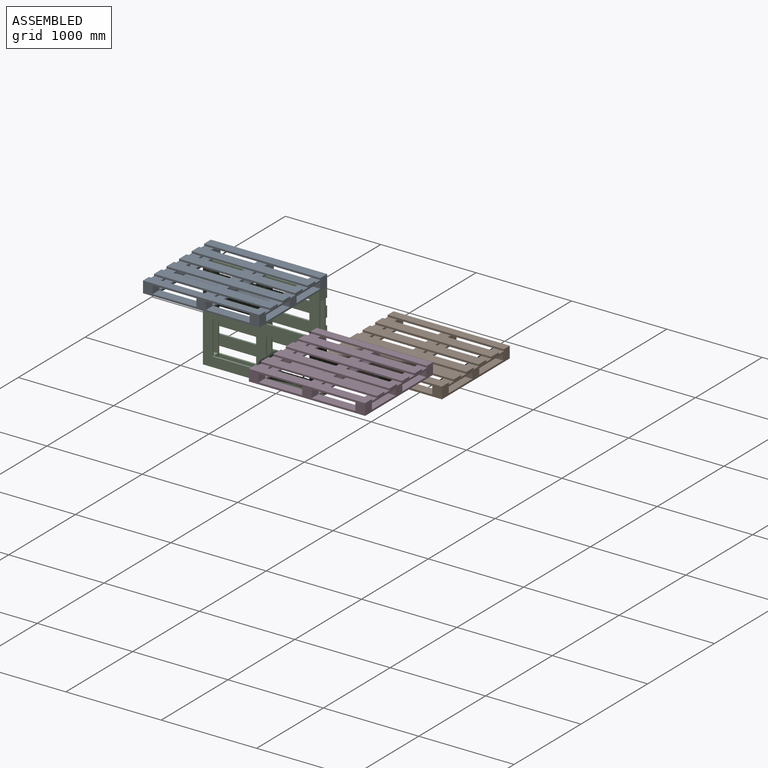
[diagram: assembled view]
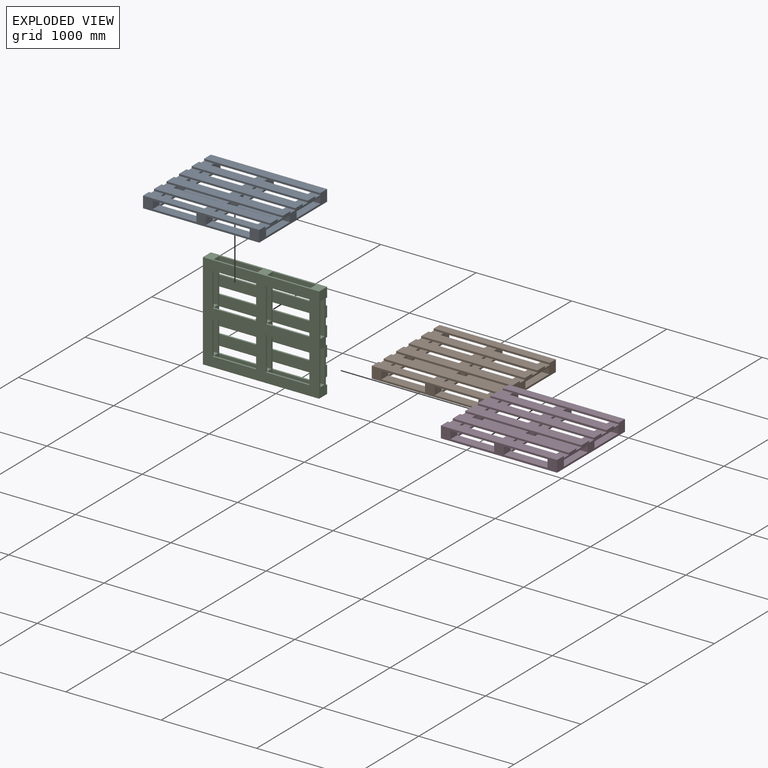
[diagram: exploded view]
GUIDED TOUR — MATED ASSEMBLY (Onshape document 05adc6c224629c6bae70dc44, AutoMate assembly 05adc6c224629c6bae70dc44_0d2d2f6238dc724be884c024_fa174cbef33d35d3b6bcdab2_default)

This assembly has 4 components, labeled P0..P3 below (a component is one placed occurrence of a part; the same part can appear more than once), held together by 1 mate. A mate is a constraint between two components; its type names the relative motion it leaves free:
  FASTENED — locks the two components together rigidly (no relative motion).
Axis/direction vectors are unit vectors and 'through' points are millimeter coordinates, both in the assembly's world frame.

MATES
  1. FASTENED "Fastened 1": P0 <-> P2, direction (0.000, 0.000, 1.000) through (77.65, -212.15, 46.92) mm

ASSEMBLY ORDER
  1. P2 — the base component [order verified]
  2. P1 [order verified]
  3. P0 [order verified]
  4. P3 [order verified]
Order-tag legend:
  [order verified] — this step's position reverses a verified removal order: the component was checked to insert without passing through the ones already placed.

Of the 4 components, 4 carry the full construction recipe — the FeatureScript program that regenerates the part's solid from scratch; the rest are supplied as boundary geometry only.
Each toured component is shown spotlighted twice — in the assembled view, then in the exploded view, where a leader line traces a displaced component back to its assembled socket (saturated green if recipe-attached, orange if geometry-only; every other component desaturated gray) — followed by its recipe or geometry summary and the mates that hold it.
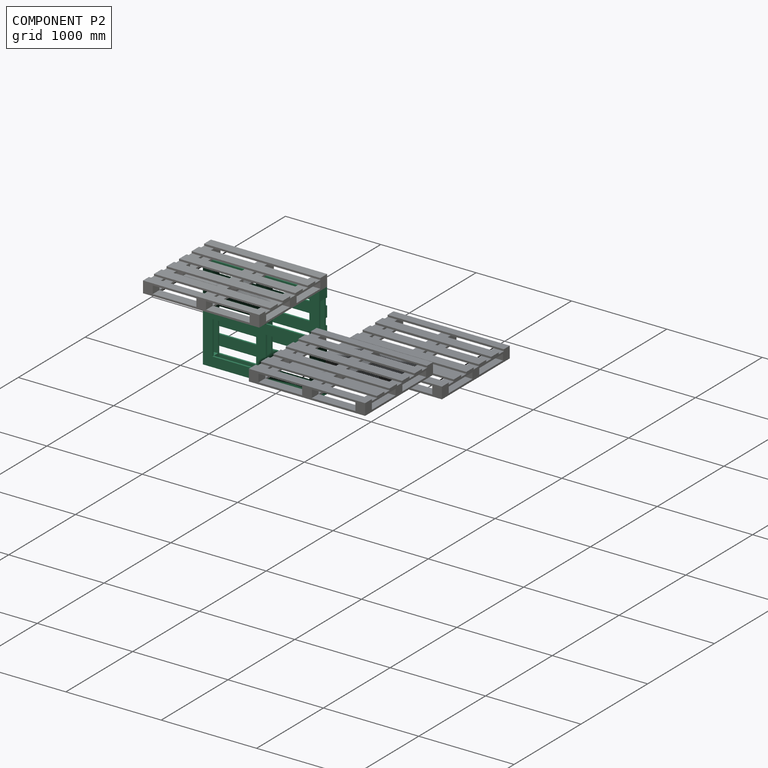
[diagram: component P2 — assembled]
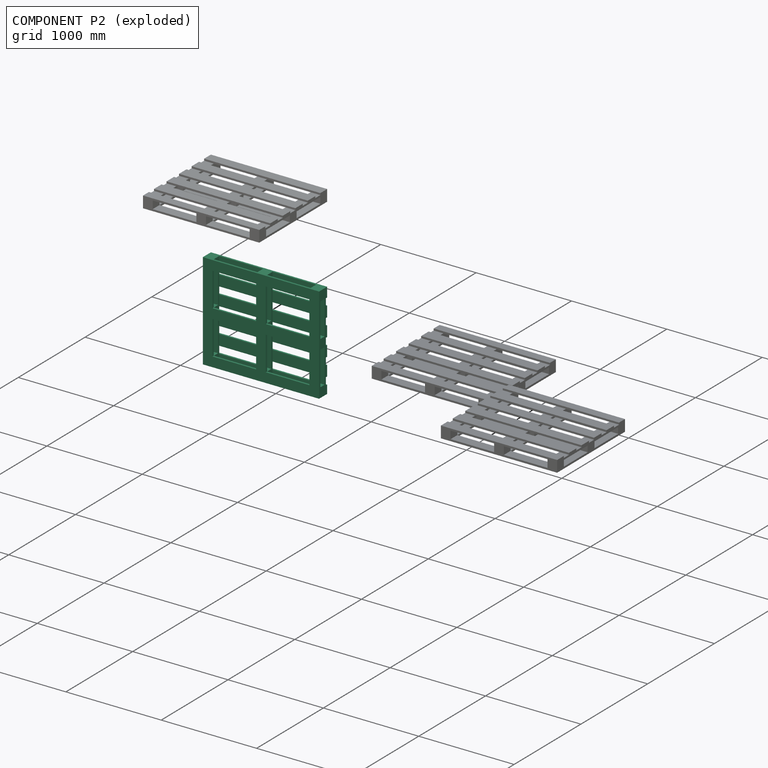
[diagram: component P2 — exploded]
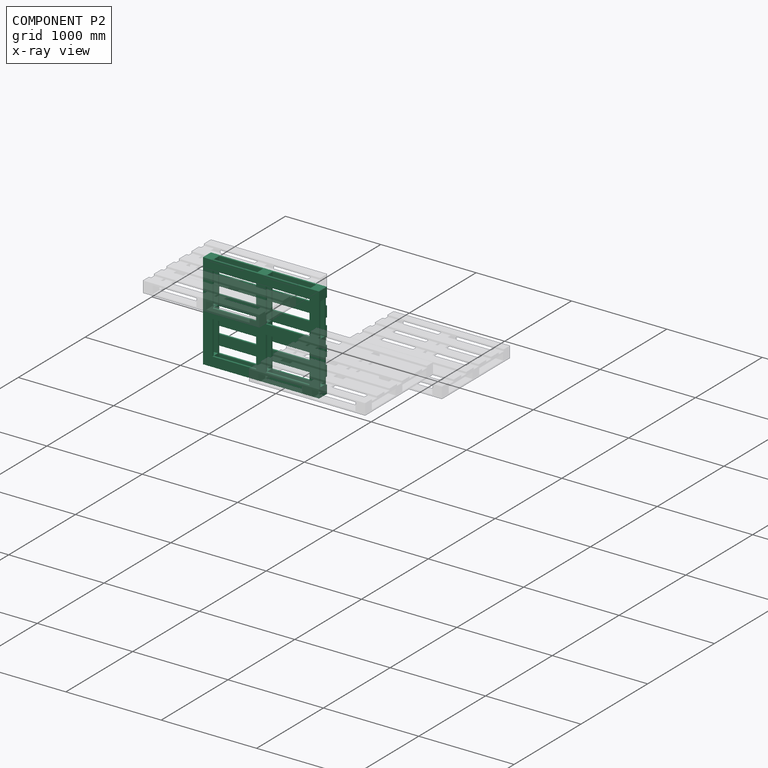
[diagram: component P2 — x-ray view]
COMPONENT P2 — same part as P0 (CADFS 00342797); its construction recipe is shown at P0.
Held by: FASTENED mate "Fastened 1" to P0.
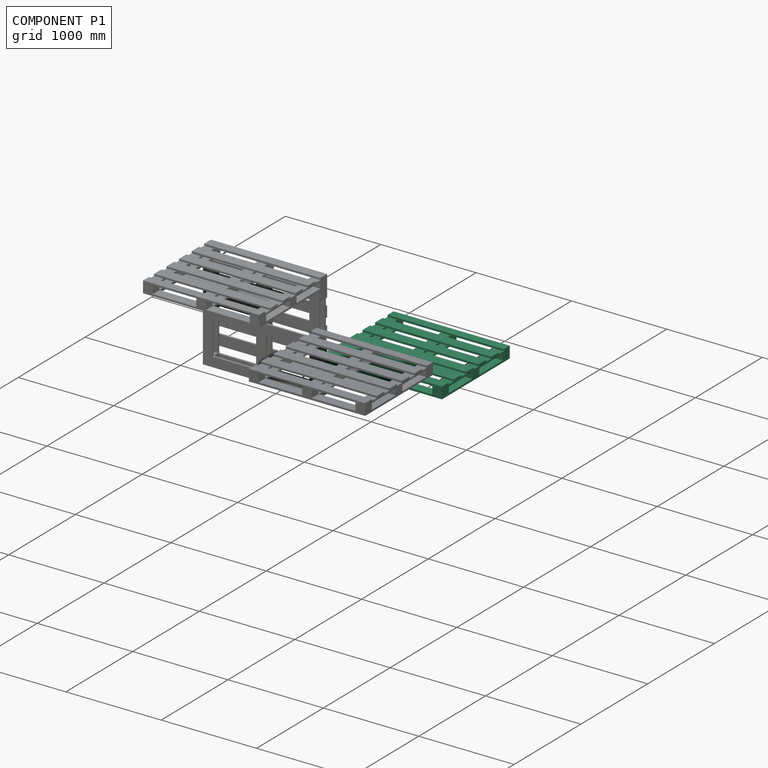
[diagram: component P1 — assembled]
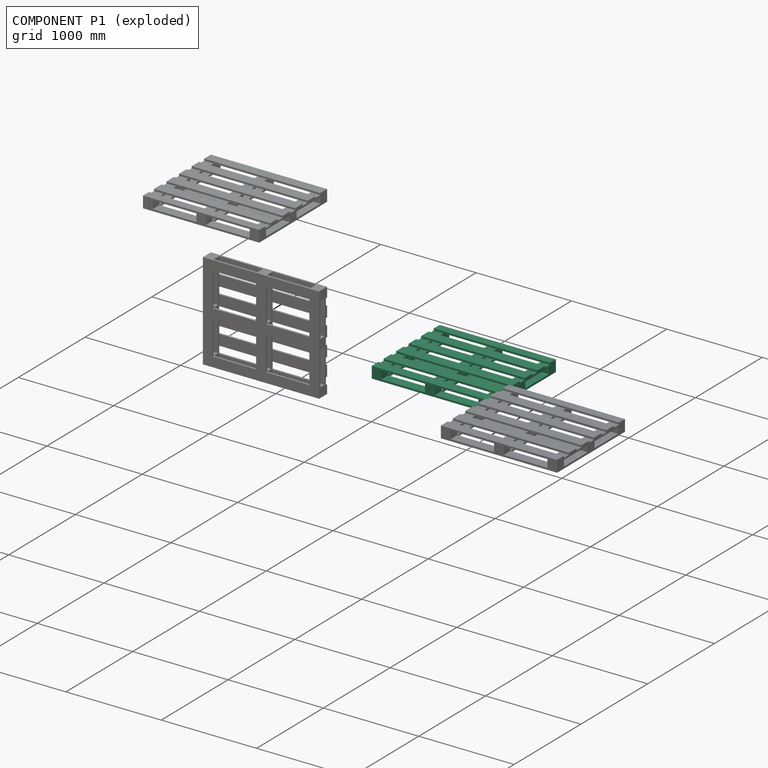
[diagram: component P1 — exploded]
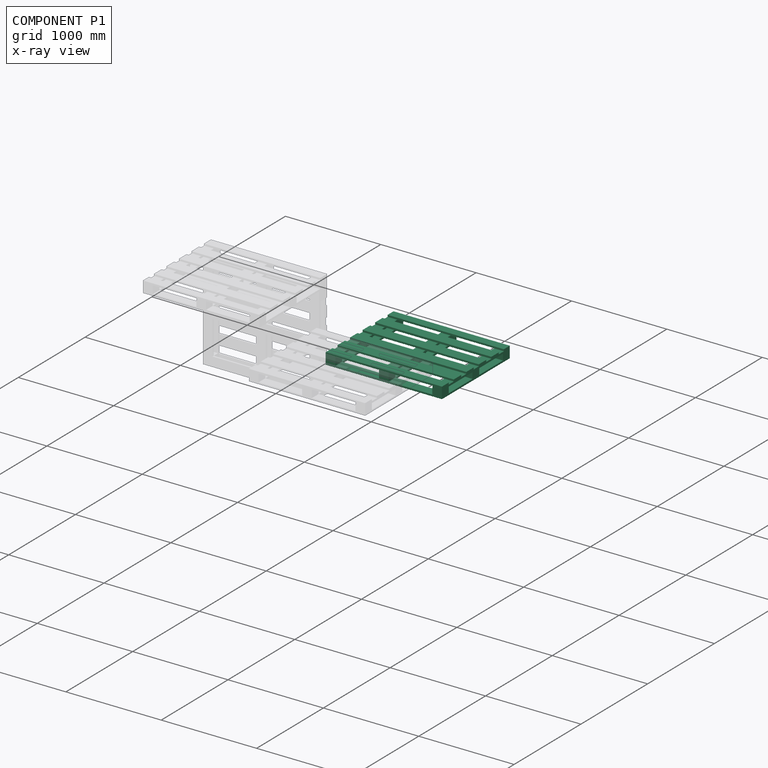
[diagram: component P1 — x-ray view]
COMPONENT P1 — same part as P0 (CADFS 00342797); its construction recipe is shown at P0.
Held by: no mates (free).
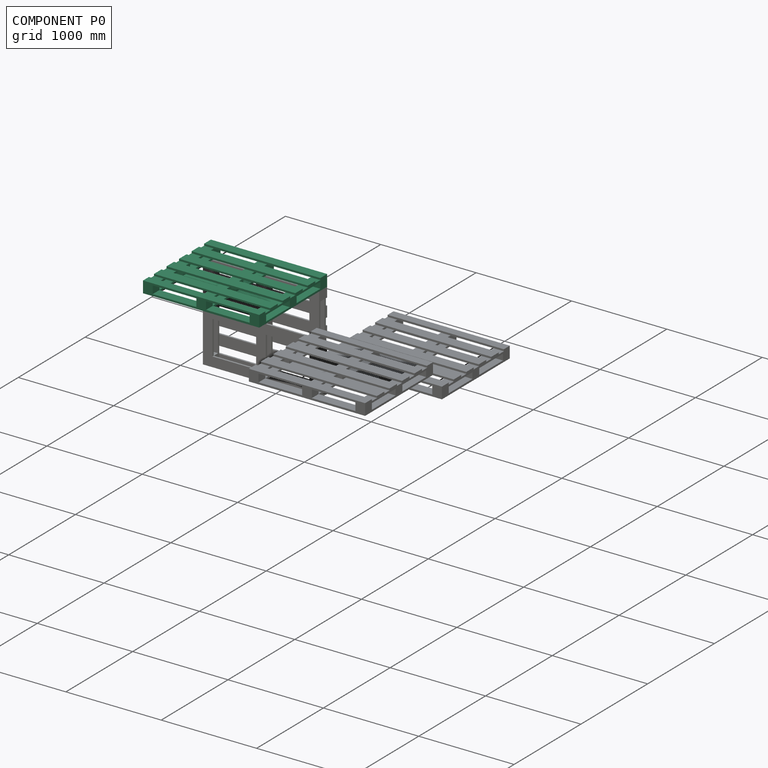
[diagram: component P0 — assembled]
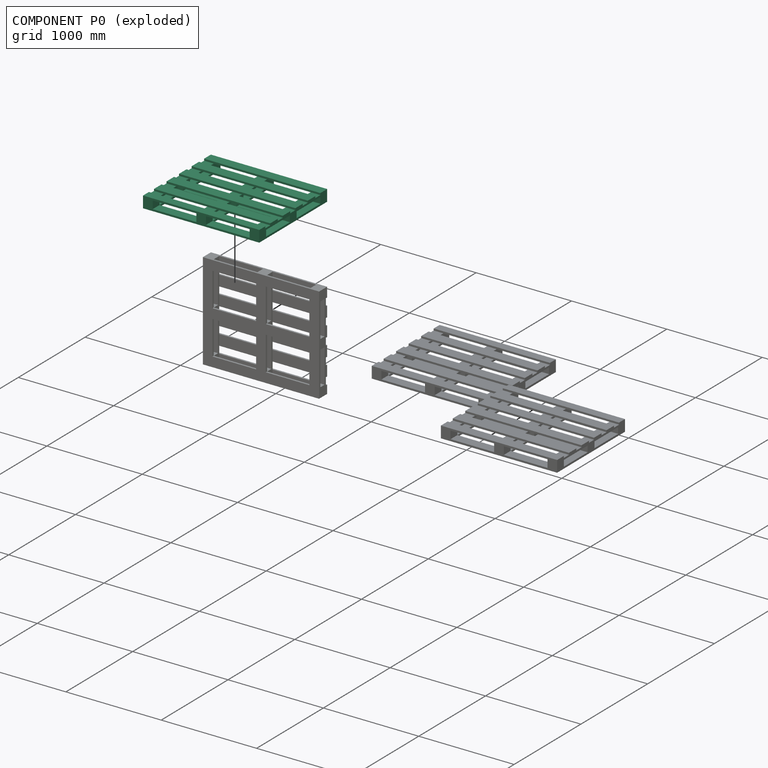
[diagram: component P0 — exploded]
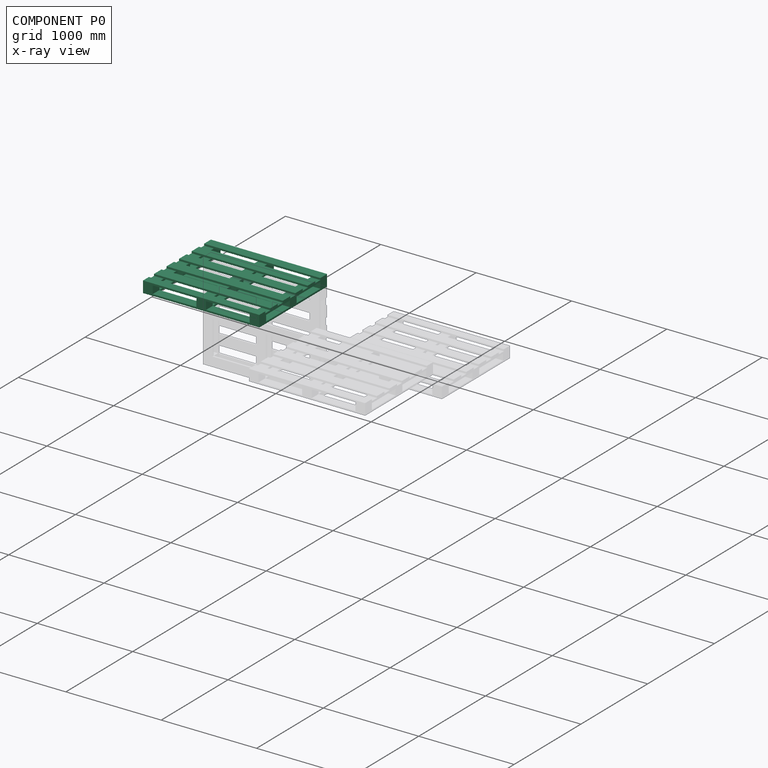
[diagram: component P0 — x-ray view]
COMPONENT P0 — recipe-attached (CADFS 00342797, mesh-verified: the recipe's output STEP matches this component's geometry to below the mesh-comparison resolution (tessellation chordal tolerance ~2.39 mm)).
Held by: FASTENED mate "Fastened 1" to P2.
Construction recipe (FeatureScript — the CAD program that rebuilds this solid; sketch coordinates are in the units given by the * unit suffixes, e.g. mm):

FeatureScript 1511;
import(path : "onshape/std/geometry.fs", version : "1511.0");
import(path : "onshape/std/common.fs", version : "1511.0");
const mm = millimeter;
const VERTEX = EntityType.VERTEX;
const EDGE = EntityType.EDGE;
const FACE = EntityType.FACE;
const BODY = EntityType.BODY;
function v(x, y){return vector(x, y);}
function OD(order){return orderDisambiguation(order);}
function OSD(set){return originalSetDisambiguation(set);}
function TD(topology){return topologyDisambiguation(topology);}
function TDD(query){return trueDependencyDisambiguation(query);}
function sQuery(a, b, c) {return sketchEntityQuery(a, b, c);}

annotation { "Feature Type Name" : "Feature", "Feature Type Description" : "" }
export const myFeature = defineFeature(function(context is Context, id is Id, definition is map)
    precondition{}
    {
        {
            var Q0;
            Q0=qCreatedBy(makeId("Front.planeOp"),FACE);
            var sketch = newSketch(context, id + "F0", { "sketchPlane" : qUnion([Q0])});
            skLineSegment(sketch, "E0.bottom", {"start": v(609.6, 50.8) * mm, "end": v(-609.6, 50.8) * mm});
            skLineSegment(sketch, "E0.top", {"start": v(609.6, -50.8) * mm, "end": v(-609.6, -50.8) * mm});
            skLineSegment(sketch, "E0.left", {"start": v(609.6, 50.8) * mm, "end": v(609.6, -50.8) * mm});
            skLineSegment(sketch, "E0.right", {"start": v(-609.6, 50.8) * mm, "end": v(-609.6, -50.8) * mm});
            skPoint(sketch, "E0.middle", {"position": v(0, 0) * mm});
            skSolve(sketch);
        }
        {
            var Q0;
            Q0=makeQuery(id+"F0.imprint","IMPRINT",FACE,{"disambiguationData":[TD([[makeQuery(id+"F0.imprint","IMPRINT",EDGE,{"derivedFrom":sQuery(id+"F0.wireOp",EDGE,"E0.bottom")}),1.0]])]});
            extrude(context, id + "F1", {"entities" : qUnion([Q0]), "endBound" : BoundingType.SYMMETRIC, "depth" : 1016 * mm});
        }
        {
            var Q0;
            Q0=makeQuery(id+"F1.opExtrude","CAP_FACE",FACE,{"disambiguationData":[OSD([sQuery(id+"F0.wireOp",EDGE,"E0.bottom"),sQuery(id+"F0.wireOp",EDGE,"E0.top"),sQuery(id+"F0.wireOp",EDGE,"E0.left"),sQuery(id+"F0.wireOp",EDGE,"E0.right")])],"isStart":false});
            var sketch = newSketch(context, id + "F2", { "sketchPlane" : qUnion([Q0])});
            skLineSegment(sketch, "E1.bottom", {"start": v(-50.8, 31.75) * mm, "end": v(-508, 31.75) * mm});
            skLineSegment(sketch, "E1.top", {"start": v(-50.8, -31.75) * mm, "end": v(-508, -31.75) * mm});
            skLineSegment(sketch, "E1.left", {"start": v(-50.8, 31.75) * mm, "end": v(-50.8, -31.75) * mm});
            skLineSegment(sketch, "E1.right", {"start": v(-508, 31.75) * mm, "end": v(-508, -31.75) * mm});
            skPoint(sketch, "E1.middle", {"position": v(-279.4, 0) * mm});
            skLineSegment(sketch, "E2", {"start": v(0, 50.8) * mm, "end": v(0, -50.8) * mm, "construction": true});
            skPoint(sketch, "E3.MirrorP", {"position": v(279.4, 0) * mm});
            skLineSegment(sketch, "E4.MirrorCS", {"start": v(50.8, 31.75) * mm, "end": v(508, 31.75) * mm});
            skLineSegment(sketch, "E5.MirrorCS", {"start": v(50.8, -31.75) * mm, "end": v(508, -31.75) * mm});
            skLineSegment(sketch, "E6.MirrorCS", {"start": v(50.8, 31.75) * mm, "end": v(50.8, -31.75) * mm});
            skLineSegment(sketch, "E7.MirrorCS", {"start": v(508, 31.75) * mm, "end": v(508, -31.75) * mm});
            skSolve(sketch);
        }
        {
            var Q0;
            Q0=qSketchRegion(id+"F2",true);
            extrude(context, id + "F3", {"entities" : qUnion([Q0]), "operationType" : NewBodyOperationType.REMOVE, "endBound" : BoundingType.THROUGH_ALL, "oppositeDirection" : true, "depth" : 25.4 * mm});
        }
        {
            var Q0;
            Q0=makeQuery(id+"F1.opExtrude","SWEPT_FACE",FACE,{"disambiguationData":[OSD([sQuery(id+"F0.wireOp",EDGE,"E0.left")])]});
            var sketch = newSketch(context, id + "F4", { "sketchPlane" : qUnion([Q0])});
            skLineSegment(sketch, "E8.bottom", {"start": v(-406.4, 31.75) * mm, "end": v(-50.8, 31.75) * mm});
            skLineSegment(sketch, "E8.top", {"start": v(-406.4, -31.75) * mm, "end": v(-50.8, -31.75) * mm});
            skLineSegment(sketch, "E8.left", {"start": v(-406.4, 31.75) * mm, "end": v(-406.4, -31.75) * mm});
            skLineSegment(sketch, "E8.right", {"start": v(-50.8, 31.75) * mm, "end": v(-50.8, -31.75) * mm});
            skPoint(sketch, "E8.middle", {"position": v(-228.6, 0) * mm});
            skLineSegment(sketch, "E9", {"start": v(0, 50.8) * mm, "end": v(0, -50.8) * mm, "construction": true});
            skLineSegment(sketch, "E10.MirrorCS", {"start": v(406.4, 31.75) * mm, "end": v(50.8, 31.75) * mm});
            skPoint(sketch, "E11.MirrorP", {"position": v(228.6, 0) * mm});
            skLineSegment(sketch, "E12.MirrorCS", {"start": v(406.4, -31.75) * mm, "end": v(50.8, -31.75) * mm});
            skLineSegment(sketch, "E13.MirrorCS", {"start": v(406.4, 31.75) * mm, "end": v(406.4, -31.75) * mm});
            skLineSegment(sketch, "E14.MirrorCS", {"start": v(50.8, 31.75) * mm, "end": v(50.8, -31.75) * mm});
            skSolve(sketch);
        }
        {
            var Q0;
            Q0=qSketchRegion(id+"F4",true);
            extrude(context, id + "F5", {"entities" : qUnion([Q0]), "operationType" : NewBodyOperationType.REMOVE, "endBound" : BoundingType.THROUGH_ALL, "oppositeDirection" : true, "depth" : 25.4 * mm});
        }
        {
            var Q0;
            Q0=makeQuery(id+"F1.opExtrude","SWEPT_FACE",FACE,{"disambiguationData":[OSD([sQuery(id+"F0.wireOp",EDGE,"E0.top")])]});
            var sketch = newSketch(context, id + "F6", { "sketchPlane" : qUnion([Q0])});
            skLineSegment(sketch, "E15", {"start": v(0, 0) * mm, "end": v(0, 508) * mm, "construction": true});
            skLineSegment(sketch, "E16", {"start": v(0, 0) * mm, "end": v(0, -508) * mm, "construction": true});
            skLineSegment(sketch, "E17", {"start": v(-609.6, 0) * mm, "end": v(609.6, 0) * mm, "construction": true});
            skLineSegment(sketch, "E18.bottom", {"start": v(508, 406.4) * mm, "end": v(50.8, 406.4) * mm});
            skLineSegment(sketch, "E18.top", {"start": v(508, 50.8) * mm, "end": v(50.8, 50.8) * mm});
            skLineSegment(sketch, "E18.left", {"start": v(508, 406.4) * mm, "end": v(508, 50.8) * mm});
            skLineSegment(sketch, "E18.right", {"start": v(50.8, 406.4) * mm, "end": v(50.8, 50.8) * mm});
            skPoint(sketch, "E18.middle", {"position": v(279.4, 228.6) * mm});
            skLineSegment(sketch, "E19.MirrorCS", {"start": v(-508, 50.8) * mm, "end": v(-50.8, 50.8) * mm});
            skLineSegment(sketch, "E20.MirrorCS", {"start": v(-50.8, 406.4) * mm, "end": v(-50.8, 50.8) * mm});
            skLineSegment(sketch, "E21.MirrorCS", {"start": v(-508, 406.4) * mm, "end": v(-50.8, 406.4) * mm});
            skLineSegment(sketch, "E22.MirrorCS", {"start": v(-508, 406.4) * mm, "end": v(-508, 50.8) * mm});
            skLineSegment(sketch, "E23.MirrorCS", {"start": v(508, -406.4) * mm, "end": v(50.8, -406.4) * mm});
            skLineSegment(sketch, "E24.MirrorCS", {"start": v(508, -50.8) * mm, "end": v(50.8, -50.8) * mm});
            skLineSegment(sketch, "E25.MirrorCS", {"start": v(508, -406.4) * mm, "end": v(508, -50.8) * mm});
            skPoint(sketch, "E26.MirrorP", {"position": v(279.4, -228.6) * mm});
            skLineSegment(sketch, "E27.MirrorCS", {"start": v(50.8, -406.4) * mm, "end": v(50.8, -50.8) * mm});
            skLineSegment(sketch, "E28.MirrorCS", {"start": v(-508, -50.8) * mm, "end": v(-50.8, -50.8) * mm});
            skLineSegment(sketch, "E29.MirrorCS", {"start": v(-50.8, -406.4) * mm, "end": v(-50.8, -50.8) * mm});
            skLineSegment(sketch, "E30.MirrorCS", {"start": v(-508, -406.4) * mm, "end": v(-50.8, -406.4) * mm});
            skLineSegment(sketch, "E31.MirrorCS", {"start": v(-508, -406.4) * mm, "end": v(-508, -50.8) * mm});
            skSolve(sketch);
        }
        {
            var Q0;
            Q0=qSketchRegion(id+"F6",true);
            extrude(context, id + "F7", {"entities" : qUnion([Q0]), "operationType" : NewBodyOperationType.REMOVE, "oppositeDirection" : true, "depth" : 25.4 * mm});
        }
        {
            var Q0;
            Q0=makeQuery(id+"F1.opExtrude","CAP_FACE",FACE,{"disambiguationData":[OSD([sQuery(id+"F0.wireOp",EDGE,"E0.bottom"),sQuery(id+"F0.wireOp",EDGE,"E0.top"),sQuery(id+"F0.wireOp",EDGE,"E0.left"),sQuery(id+"F0.wireOp",EDGE,"E0.right")])],"isStart":false});
            var sketch = newSketch(context, id + "F8", { "sketchPlane" : qUnion([Q0])});
            skLineSegment(sketch, "E32.bottom", {"start": v(-508, 50.8) * mm, "end": v(-50.8, 50.8) * mm});
            skLineSegment(sketch, "E32.top", {"start": v(-508, 31.75) * mm, "end": v(-50.8, 31.75) * mm});
            skLineSegment(sketch, "E32.left", {"start": v(-508, 50.8) * mm, "end": v(-508, 31.75) * mm});
            skLineSegment(sketch, "E32.right", {"start": v(-50.8, 50.8) * mm, "end": v(-50.8, 31.75) * mm});
            skLineSegment(sketch, "E33.MirrorCS", {"start": v(508, 50.8) * mm, "end": v(508, 31.75) * mm});
            skLineSegment(sketch, "E34.MirrorCS", {"start": v(50.8, 50.8) * mm, "end": v(50.8, 31.75) * mm});
            skLineSegment(sketch, "E35.MirrorCS", {"start": v(508, 31.75) * mm, "end": v(50.8, 31.75) * mm});
            skLineSegment(sketch, "E36.MirrorCS", {"start": v(508, 50.8) * mm, "end": v(50.8, 50.8) * mm});
            skSolve(sketch);
        }
        {
            var Q0;
            Q0=qSketchRegion(id+"F8",true);
            extrude(context, id + "F9", {"entities" : qUnion([Q0]), "operationType" : NewBodyOperationType.REMOVE, "endBound" : BoundingType.THROUGH_ALL, "oppositeDirection" : true, "depth" : 25.4 * mm});
        }
        {
            var Q0;
            {var subQ0=sQuery(id+"F0.wireOp",EDGE,"E0.left");var subQ3=sQuery(id+"F0.wireOp",EDGE,"E0.bottom");Q0=makeQuery(id+"F9.boolean.opBoolean","SPLIT",FACE,{"disambiguationData":[TD([makeQuery(id+"F1.opExtrude","SWEPT_FACE",FACE,{"disambiguationData":[OSD([subQ0])]})])],"derivedFrom":makeQuery(id+"F1.opExtrude","SWEPT_FACE",FACE,{"disambiguationData":[OSD([subQ3])]})});}
            var sketch = newSketch(context, id + "F10", { "sketchPlane" : qUnion([Q0])});
            skLineSegment(sketch, "E37.bottom", {"start": v(609.6, -508) * mm, "end": v(-609.6, -508) * mm});
            skLineSegment(sketch, "E37.top", {"start": v(609.6, 508) * mm, "end": v(-609.6, 508) * mm});
            skLineSegment(sketch, "E37.left", {"start": v(609.6, -508) * mm, "end": v(609.6, 508) * mm});
            skLineSegment(sketch, "E37.right", {"start": v(-609.6, -508) * mm, "end": v(-609.6, 508) * mm});
            skSolve(sketch);
        }
        {
            var Q0;
            Q0=qSketchRegion(id+"F10",true);
            extrude(context, id + "F11", {"entities" : qUnion([Q0]), "operationType" : NewBodyOperationType.ADD, "depth" : 19.05 * mm});
        }
        {
            var Q0;
            Q0=makeQuery(id+"F11.boolean.opBoolean","MERGE",FACE,{"derivedFrom":[makeQuery(id+"F1.opExtrude","SWEPT_FACE",FACE,{"disambiguationData":[OSD([sQuery(id+"F0.wireOp",EDGE,"E0.left")])]}),makeQuery(id+"F11.opExtrude","SWEPT_FACE",FACE,{"disambiguationData":[OSD([sQuery(id+"F10.wireOp",EDGE,"E37.left")])]})]});
            var sketch = newSketch(context, id + "F12", { "sketchPlane" : qUnion([Q0])});
            skLineSegment(sketch, "E38.bottom", {"start": v(-406.4, 69.85) * mm, "end": v(-330.2, 69.85) * mm});
            skLineSegment(sketch, "E38.top", {"start": v(-406.4, 50.8) * mm, "end": v(-330.2, 50.8) * mm});
            skLineSegment(sketch, "E38.left", {"start": v(-406.4, 69.85) * mm, "end": v(-406.4, 50.8) * mm});
            skLineSegment(sketch, "E38.right", {"start": v(-330.2, 69.85) * mm, "end": v(-330.2, 50.8) * mm});
            skLineSegment(sketch, "E39.1.0.0", {"start": v(-142.75, 69.85) * mm, "end": v(-142.75, 50.8) * mm});
            skLineSegment(sketch, "E39.1.0.1", {"start": v(-218.95, 69.85) * mm, "end": v(-218.95, 50.8) * mm});
            skLineSegment(sketch, "E39.1.0.2", {"start": v(-218.95, 50.8) * mm, "end": v(-142.75, 50.8) * mm});
            skLineSegment(sketch, "E39.1.0.3", {"start": v(-218.95, 69.85) * mm, "end": v(-142.75, 69.85) * mm});
            skLineSegment(sketch, "E39.2.0.0", {"start": v(44.7, 69.85) * mm, "end": v(44.7, 50.8) * mm});
            skLineSegment(sketch, "E39.2.0.1", {"start": v(-31.5, 69.85) * mm, "end": v(-31.5, 50.8) * mm});
            skLineSegment(sketch, "E39.2.0.2", {"start": v(-31.5, 50.8) * mm, "end": v(44.7, 50.8) * mm});
            skLineSegment(sketch, "E39.2.0.3", {"start": v(-31.5, 69.85) * mm, "end": v(44.7, 69.85) * mm});
            skLineSegment(sketch, "E39.3.0.0", {"start": v(232.16, 69.85) * mm, "end": v(232.16, 50.8) * mm});
            skLineSegment(sketch, "E39.3.0.1", {"start": v(155.96, 69.85) * mm, "end": v(155.96, 50.8) * mm});
            skLineSegment(sketch, "E39.3.0.2", {"start": v(155.96, 50.8) * mm, "end": v(232.16, 50.8) * mm});
            skLineSegment(sketch, "E39.3.0.3", {"start": v(155.96, 69.85) * mm, "end": v(232.16, 69.85) * mm});
            skLineSegment(sketch, "E39.4.0.0", {"start": v(419.6, 69.85) * mm, "end": v(419.6, 50.8) * mm});
            skLineSegment(sketch, "E39.4.0.1", {"start": v(343.4, 69.85) * mm, "end": v(343.4, 50.8) * mm});
            skLineSegment(sketch, "E39.4.0.2", {"start": v(343.4, 50.8) * mm, "end": v(419.6, 50.8) * mm});
            skLineSegment(sketch, "E39.4.0.3", {"start": v(343.4, 69.85) * mm, "end": v(419.6, 69.85) * mm});
            skLineSegment(sketch, "E39.5.0.0", {"start": v(607.06, 69.85) * mm, "end": v(607.06, 50.8) * mm});
            skLineSegment(sketch, "E39.5.0.1", {"start": v(530.86, 69.85) * mm, "end": v(530.86, 50.8) * mm});
            skLineSegment(sketch, "E39.5.0.2", {"start": v(530.86, 50.8) * mm, "end": v(607.06, 50.8) * mm});
            skLineSegment(sketch, "E39.5.0.3", {"start": v(530.86, 69.85) * mm, "end": v(607.06, 69.85) * mm});
            skLineSegment(sketch, "E39.direction1", {"start": v(-406.4, 50.8) * mm, "end": v(-218.95, 50.8) * mm, "construction": true});
            skSolve(sketch);
        }
        {
            var Q0;
            Q0=qSketchRegion(id+"F12",true);
            extrude(context, id + "F13", {"entities" : qUnion([Q0]), "operationType" : NewBodyOperationType.REMOVE, "endBound" : BoundingType.THROUGH_ALL, "oppositeDirection" : true, "depth" : 25.4 * mm});
        }
    });
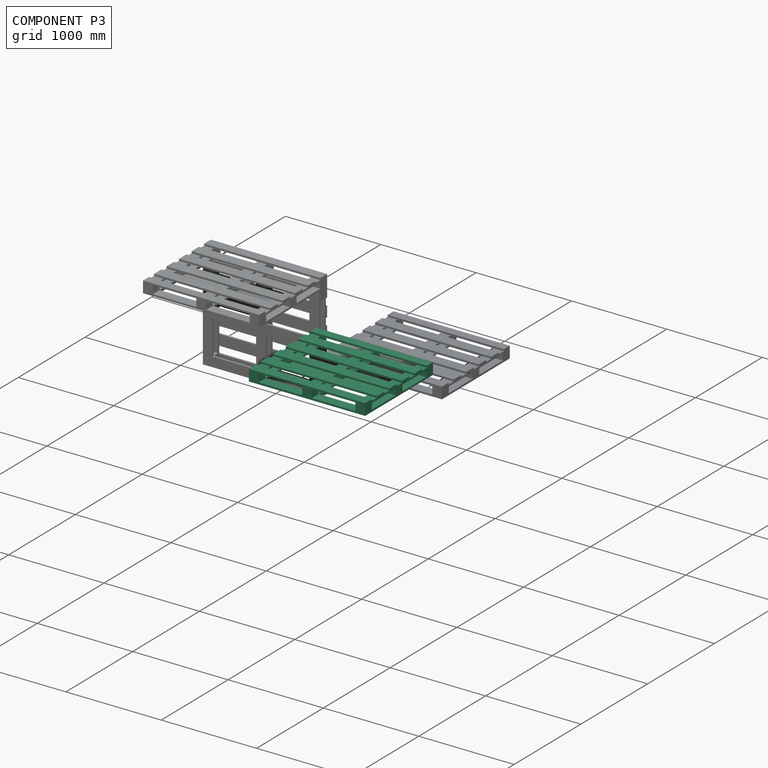
[diagram: component P3 — assembled]
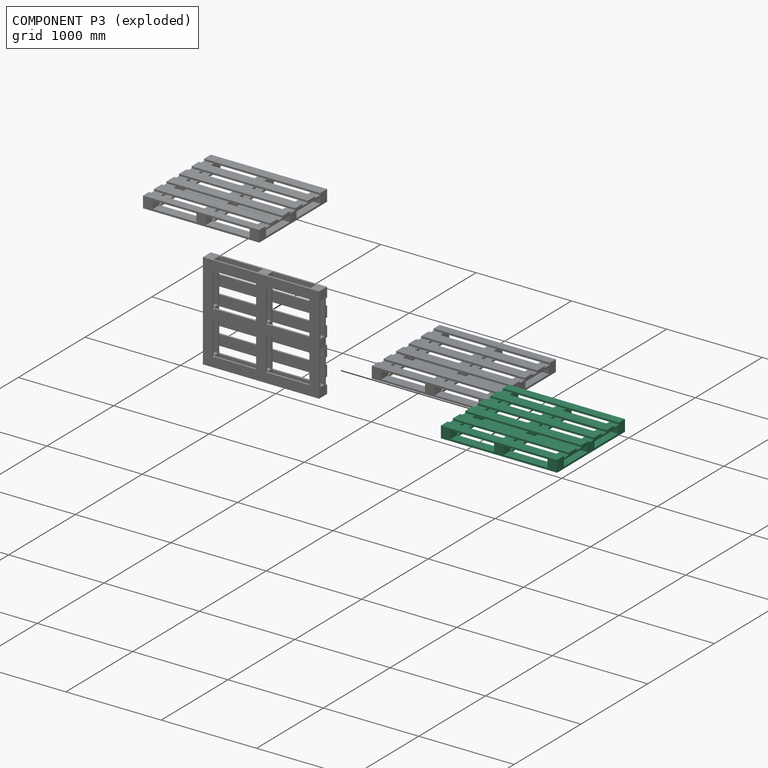
[diagram: component P3 — exploded]
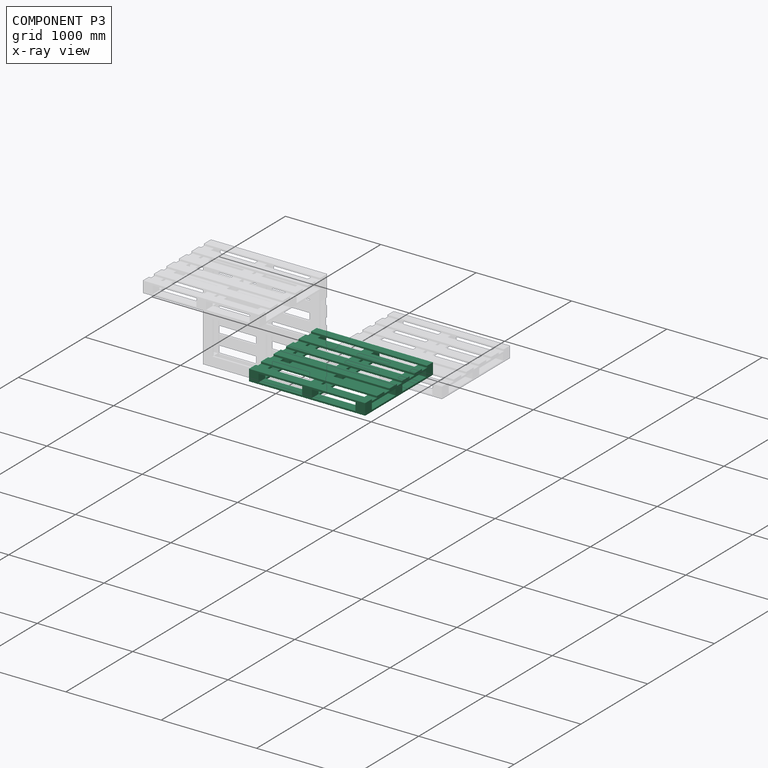
[diagram: component P3 — x-ray view]
COMPONENT P3 — same part as P0 (CADFS 00342797); its construction recipe is shown at P0.
Held by: no mates (free).
PROVENANCE & LICENSES
Assembly (occurrences, transforms, mates, per-part STEP geometry): AutoMate dataset, Zenodo record 7776208, CC0.
Construction recipes: CADFS (HuggingFace VladPyatov/CADFS, CC-BY-4.0, layered over the ABC dataset), FeatureScript reconstruction programs keyed by ABC model id.
Join: ABC meta listings map ABC model id -> Onshape documentId; within a shared document, parts are matched by geometric signature (bounding-box dims + volume at 0.1% relative tolerance, exact B-rep face/solid counts).
Verification: 4 of this assembly's 4 components carry a recipe attachment, and every attachment is mesh-verified: the CADFS STEP and the AutoMate member STEP were compared as meshes in their shared local frame (symmetric sampled-point-to-mesh distance); worst across the 4 attachments: below the mesh-comparison resolution (tessellation chordal tolerance ~2.39 mm) on a 1592 mm part.
Renders: orthographic iso camera (az 35 / el 25); the floor grid conveys scale (grid pitch printed in each image; no ruler). In the exploded view each component is displaced by its stored offset vector: the offsets alone carry the explosion direction (mate normal/axis signs are not orientation cues and do not encode it), and separation distances are assigned per mate-chain, not proportionally to assembly-order depth.
